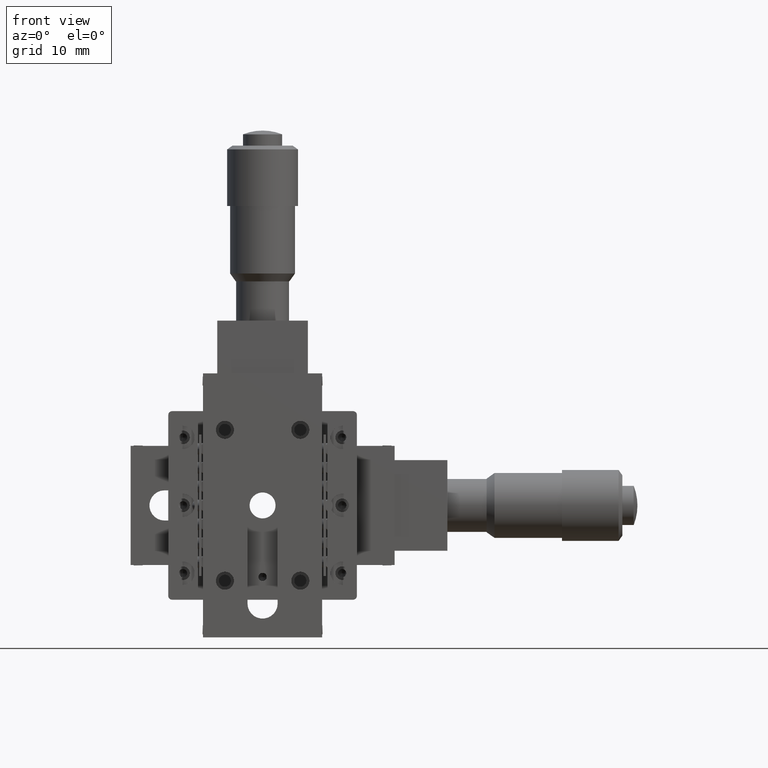
[diagram: clean part render]
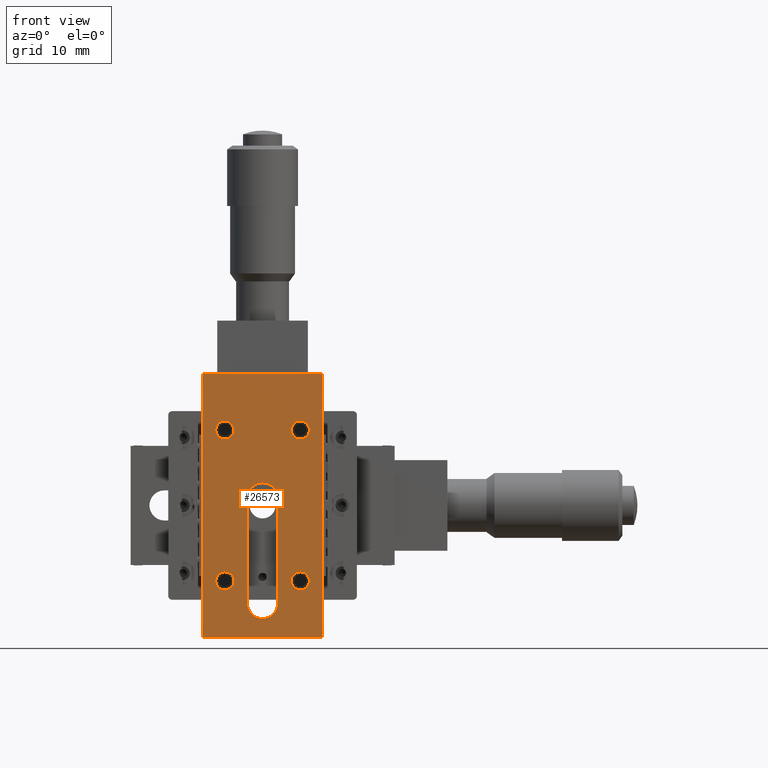
[diagram: same view with one face highlighted and labeled with its STEP entity id]
A machine part, front view. The second image highlights one B-rep face of the part: STEP entity #26573.
In plain terms, the highlighted planar face has unit normal (-0, 1, 0).
Its self-contained STEP definition (entity closure, byte-faithful):
#158 = DIRECTION ( 'NONE',  ( 0.0000000000000000000, 1.110223024625156500E-015, -1.000000000000000000 ) ) ;
#200 = DIRECTION ( 'NONE',  ( 0.0000000000000000000, 1.110223024625156500E-015, -1.000000000000000000 ) ) ;
#422 = VECTOR ( 'NONE', #9794, 1000.000000000000000 ) ;
#506 = CIRCLE ( 'NONE', #50569, 1.199999999999999700 ) ;
#1143 = VECTOR ( 'NONE', #20585, 1000.000000000000000 ) ;
#2411 = EDGE_CURVE ( 'NONE', #31927, #52229, #16570, .T. ) ;
#3026 = CIRCLE ( 'NONE', #14274, 1.199999999999999700 ) ;
#3880 = EDGE_CURVE ( 'NONE', #15996, #24010, #49608, .T. ) ;
#3950 = ORIENTED_EDGE ( 'NONE', *, *, #65214, .F. ) ;
#4063 = ORIENTED_EDGE ( 'NONE', *, *, #49548, .F. ) ;
#4249 = AXIS2_PLACEMENT_3D ( 'NONE', #55560, #61020, #66495 ) ;
#4404 = EDGE_LOOP ( 'NONE', ( #20397, #26234 ) ) ;
#5072 = VECTOR ( 'NONE', #12474, 1000.000000000000000 ) ;
#5094 = CARTESIAN_POINT ( 'NONE',  ( -2.888894916580853800E-030, 1.185163078787354600E-014, -13.00000000000000200 ) ) ;
#5364 = CARTESIAN_POINT ( 'NONE',  ( -5.000000000000000900, 1.151856388048599900E-014, -10.00000000000000200 ) ) ;
#6958 = VECTOR ( 'NONE', #20531, 1000.000000000000000 ) ;
#7194 = VERTEX_POINT ( 'NONE', #29598 ) ;
#7515 = CARTESIAN_POINT ( 'NONE',  ( -2.000000000000001300, -1.110223024625154200E-016, 0.9999999999999974500 ) ) ;
#7636 = CARTESIAN_POINT ( 'NONE',  ( -7.900000000000002100, 1.235123114895487100E-014, -17.50000000000002500 ) ) ;
#7740 = CIRCLE ( 'NONE', #27718, 1.199999999999999700 ) ;
#8347 = EDGE_LOOP ( 'NONE', ( #50861, #34648, #64159, #52198, #25295 ) ) ;
#8455 = LINE ( 'NONE', #49525, #5072 ) ;
#9764 = LINE ( 'NONE', #31417, #422 ) ;
#9794 = DIRECTION ( 'NONE',  ( 1.000000000000000000, 0.0000000000000000000, -0.0000000000000000000 ) ) ;
#9799 = EDGE_LOOP ( 'NONE', ( #64377, #20846 ) ) ;
#10499 = VERTEX_POINT ( 'NONE', #17187 ) ;
#10919 = CARTESIAN_POINT ( 'NONE',  ( -5.000000000000000900, 1.151856388048599900E-014, -10.00000000000000200 ) ) ;
#11015 = CARTESIAN_POINT ( 'NONE',  ( -2.000000000000000000, 1.185163078787354600E-014, -13.00000000000000200 ) ) ;
#11176 = AXIS2_PLACEMENT_3D ( 'NONE', #12284, #34339, #50261 ) ;
#12284 = CARTESIAN_POINT ( 'NONE',  ( -7.900000000000002100, -1.235678226407799000E-014, 17.54999999999997900 ) ) ;
#12312 = FACE_BOUND ( 'NONE', #41667, .T. ) ;
#12474 = DIRECTION ( 'NONE',  ( 0.0000000000000000000, 1.110223024625156700E-015, -1.000000000000000000 ) ) ;
#12690 = DIRECTION ( 'NONE',  ( 5.605193857299268300E-045, -1.000000000000000000, 1.387778780781445900E-015 ) ) ;
#12939 = ORIENTED_EDGE ( 'NONE', *, *, #61300, .F. ) ;
#13430 = CIRCLE ( 'NONE', #41445, 1.199999999999999700 ) ;
#13987 = FACE_BOUND ( 'NONE', #9799, .T. ) ;
#14274 = AXIS2_PLACEMENT_3D ( 'NONE', #17356, #21872, #60833 ) ;
#14436 = VERTEX_POINT ( 'NONE', #49265 ) ;
#14531 = DIRECTION ( 'NONE',  ( 5.605193857299268300E-045, -1.000000000000000000, 1.387778780781445900E-015 ) ) ;
#15512 = EDGE_LOOP ( 'NONE', ( #68086, #57704, #17176, #4063 ) ) ;
#15996 = VERTEX_POINT ( 'NONE', #18301 ) ;
#16152 = EDGE_CURVE ( 'NONE', #7194, #29678, #33557, .T. ) ;
#16445 = LINE ( 'NONE', #29146, #17342 ) ;
#16570 = CIRCLE ( 'NONE', #47558, 2.000000000000000000 ) ;
#17176 = ORIENTED_EDGE ( 'NONE', *, *, #40668, .F. ) ;
#17187 = CARTESIAN_POINT ( 'NONE',  ( 4.999999999999999100, 1.285083151003618500E-014, -11.20000000000000100 ) ) ;
#17342 = VECTOR ( 'NONE', #50522, 1000.000000000000000 ) ;
#17356 = CARTESIAN_POINT ( 'NONE',  ( 4.999999999999999100, 1.151856388048599900E-014, -10.00000000000000200 ) ) ;
#17403 = EDGE_CURVE ( 'NONE', #34210, #31927, #16445, .T. ) ;
#18182 = CARTESIAN_POINT ( 'NONE',  ( 2.000000000000000000, 1.185163078787354600E-014, -13.00000000000000200 ) ) ;
#18301 = CARTESIAN_POINT ( 'NONE',  ( -7.900000000000002100, -1.235123114895486300E-014, 17.49999999999997900 ) ) ;
#18979 = AXIS2_PLACEMENT_3D ( 'NONE', #10919, #43213, #31832 ) ;
#19192 = ORIENTED_EDGE ( 'NONE', *, *, #34022, .F. ) ;
#19970 = CARTESIAN_POINT ( 'NONE',  ( 4.999999999999999100, 1.318389841742373400E-014, -8.800000000000002500 ) ) ;
#20290 = DIRECTION ( 'NONE',  ( 0.0000000000000000000, 1.110223024625156700E-015, -1.000000000000000000 ) ) ;
#20397 = ORIENTED_EDGE ( 'NONE', *, *, #31062, .F. ) ;
#20531 = DIRECTION ( 'NONE',  ( -1.548860246407863600E-016, -1.110223024625156700E-015, 1.000000000000000000 ) ) ;
#20585 = DIRECTION ( 'NONE',  ( 0.0000000000000000000, 1.110223024625156700E-015, -1.000000000000000000 ) ) ;
#20846 = ORIENTED_EDGE ( 'NONE', *, *, #38129, .F. ) ;
#21756 = DIRECTION ( 'NONE',  ( 5.605193857299268300E-045, -1.000000000000000000, 1.387778780781445900E-015 ) ) ;
#21872 = DIRECTION ( 'NONE',  ( 5.605193857299268300E-045, -1.000000000000000000, 1.387778780781445900E-015 ) ) ;
#22179 = AXIS2_PLACEMENT_3D ( 'NONE', #58753, #26211, #31905 ) ;
#22435 = FACE_BOUND ( 'NONE', #28190, .T. ) ;
#22951 = PLANE ( 'NONE',  #11176 ) ;
#24010 = VERTEX_POINT ( 'NONE', #7636 ) ;
#25083 = EDGE_CURVE ( 'NONE', #52229, #34728, #58847, .T. ) ;
#25295 = ORIENTED_EDGE ( 'NONE', *, *, #2411, .F. ) ;
#25939 = CIRCLE ( 'NONE', #61452, 1.999999999999999600 ) ;
#26025 = EDGE_CURVE ( 'NONE', #14436, #34210, #25939, .T. ) ;
#26211 = DIRECTION ( 'NONE',  ( 5.605193857299268300E-045, -1.000000000000000000, 1.387778780781445900E-015 ) ) ;
#26234 = ORIENTED_EDGE ( 'NONE', *, *, #57772, .F. ) ;
#26573 = ADVANCED_FACE ( 'NONE', ( #13987, #12312, #54786, #37810, #22435, #61580 ), #22951, .F. ) ;
#27718 = AXIS2_PLACEMENT_3D ( 'NONE', #55543, #34121, #65780 ) ;
#28177 = VERTEX_POINT ( 'NONE', #38602 ) ;
#28190 = EDGE_LOOP ( 'NONE', ( #3950, #12939 ) ) ;
#28650 = EDGE_CURVE ( 'NONE', #34728, #14436, #43572, .T. ) ;
#28957 = AXIS2_PLACEMENT_3D ( 'NONE', #39985, #12690, #50697 ) ;
#29001 = CARTESIAN_POINT ( 'NONE',  ( -5.000000000000000900, 1.318389841742373400E-014, -8.800000000000002500 ) ) ;
#29146 = CARTESIAN_POINT ( 'NONE',  ( -2.000000000000000000, 1.185163078787354600E-014, -13.00000000000000200 ) ) ;
#29598 = CARTESIAN_POINT ( 'NONE',  ( -5.000000000000000900, 1.285083151003618500E-014, -11.20000000000000100 ) ) ;
#29678 = VERTEX_POINT ( 'NONE', #29001 ) ;
#30479 = DIRECTION ( 'NONE',  ( 0.0000000000000000000, 1.110223024625156500E-015, -1.000000000000000000 ) ) ;
#31062 = EDGE_CURVE ( 'NONE', #42781, #46257, #7740, .T. ) ;
#31417 = CARTESIAN_POINT ( 'NONE',  ( -7.900000000000002100, -1.235123114895486300E-014, 17.49999999999997900 ) ) ;
#31832 = DIRECTION ( 'NONE',  ( 0.0000000000000000000, 1.110223024625156500E-015, -1.000000000000000000 ) ) ;
#31905 = DIRECTION ( 'NONE',  ( 0.0000000000000000000, 1.110223024625156700E-015, -1.000000000000000000 ) ) ;
#31927 = VERTEX_POINT ( 'NONE', #11015 ) ;
#33557 = CIRCLE ( 'NONE', #18979, 1.199999999999999700 ) ;
#34022 = EDGE_CURVE ( 'NONE', #46192, #63651, #506, .T. ) ;
#34121 = DIRECTION ( 'NONE',  ( 5.605193857299268300E-045, -1.000000000000000000, 1.387778780781445900E-015 ) ) ;
#34210 = VERTEX_POINT ( 'NONE', #7515 ) ;
#34339 = DIRECTION ( 'NONE',  ( -5.605193857299268300E-045, 1.000000000000000000, 1.110223024625156700E-015 ) ) ;
#34554 = CARTESIAN_POINT ( 'NONE',  ( 7.900000000000000400, -1.235123114895486300E-014, 17.49999999999997900 ) ) ;
#34648 = ORIENTED_EDGE ( 'NONE', *, *, #26025, .F. ) ;
#34728 = VERTEX_POINT ( 'NONE', #35694 ) ;
#35513 = CARTESIAN_POINT ( 'NONE',  ( -4.999999999999998200, -1.018629625093581100E-014, 8.800000000000002500 ) ) ;
#35694 = CARTESIAN_POINT ( 'NONE',  ( 1.999999999999997800, -1.110223024625153700E-016, 0.9999999999999970000 ) ) ;
#37810 = FACE_BOUND ( 'NONE', #4404, .T. ) ;
#38129 = EDGE_CURVE ( 'NONE', #29678, #7194, #51433, .T. ) ;
#38602 = CARTESIAN_POINT ( 'NONE',  ( 7.900000000000000400, 1.235123114895487100E-014, -17.50000000000002500 ) ) ;
#38783 = CARTESIAN_POINT ( 'NONE',  ( 5.000000000000001800, -9.853229343548264300E-015, 11.20000000000000100 ) ) ;
#39985 = CARTESIAN_POINT ( 'NONE',  ( 5.000000000000001800, -1.151856388048599900E-014, 10.00000000000000200 ) ) ;
#40028 = EDGE_CURVE ( 'NONE', #63651, #46192, #47826, .T. ) ;
#40668 = EDGE_CURVE ( 'NONE', #28177, #24010, #56287, .T. ) ;
#41042 = CARTESIAN_POINT ( 'NONE',  ( 5.000000000000001800, -1.018629625093581100E-014, 8.800000000000002500 ) ) ;
#41445 = AXIS2_PLACEMENT_3D ( 'NONE', #53009, #14531, #30479 ) ;
#41667 = EDGE_LOOP ( 'NONE', ( #70528, #19192 ) ) ;
#42781 = VERTEX_POINT ( 'NONE', #35513 ) ;
#43213 = DIRECTION ( 'NONE',  ( 5.605193857299268300E-045, -1.000000000000000000, 1.387778780781445900E-015 ) ) ;
#43572 = CIRCLE ( 'NONE', #22179, 1.999999999999999600 ) ;
#43697 = EDGE_CURVE ( 'NONE', #15996, #68536, #9764, .T. ) ;
#46192 = VERTEX_POINT ( 'NONE', #38783 ) ;
#46257 = VERTEX_POINT ( 'NONE', #66127 ) ;
#47558 = AXIS2_PLACEMENT_3D ( 'NONE', #5094, #69528, #20290 ) ;
#47826 = CIRCLE ( 'NONE', #28957, 1.199999999999999700 ) ;
#49265 = CARTESIAN_POINT ( 'NONE',  ( -1.775737858763661600E-015, 2.664535259100375700E-015, 2.999999999999996900 ) ) ;
#49525 = CARTESIAN_POINT ( 'NONE',  ( 7.900000000000000400, -1.235678226407799000E-014, 17.54999999999997900 ) ) ;
#49548 = EDGE_CURVE ( 'NONE', #68536, #28177, #8455, .T. ) ;
#49608 = LINE ( 'NONE', #58618, #1143 ) ;
#50261 = DIRECTION ( 'NONE',  ( 0.0000000000000000000, 1.110223024625156700E-015, -1.000000000000000000 ) ) ;
#50522 = DIRECTION ( 'NONE',  ( 9.293161478447181700E-017, 1.110223024625156700E-015, -1.000000000000000000 ) ) ;
#50569 = AXIS2_PLACEMENT_3D ( 'NONE', #53416, #64846, #200 ) ;
#50697 = DIRECTION ( 'NONE',  ( 0.0000000000000000000, 1.110223024625156500E-015, -1.000000000000000000 ) ) ;
#50861 = ORIENTED_EDGE ( 'NONE', *, *, #17403, .F. ) ;
#51007 = DIRECTION ( 'NONE',  ( -1.000000000000000000, 0.0000000000000000000, 0.0000000000000000000 ) ) ;
#51433 = CIRCLE ( 'NONE', #52032, 1.199999999999999700 ) ;
#52032 = AXIS2_PLACEMENT_3D ( 'NONE', #5364, #21756, #158 ) ;
#52198 = ORIENTED_EDGE ( 'NONE', *, *, #25083, .F. ) ;
#52229 = VERTEX_POINT ( 'NONE', #18182 ) ;
#52750 = DIRECTION ( 'NONE',  ( 0.0000000000000000000, 1.110223024625156700E-015, -1.000000000000000000 ) ) ;
#53009 = CARTESIAN_POINT ( 'NONE',  ( -4.999999999999998200, -1.151856388048599900E-014, 10.00000000000000200 ) ) ;
#53416 = CARTESIAN_POINT ( 'NONE',  ( 5.000000000000001800, -1.151856388048599900E-014, 10.00000000000000200 ) ) ;
#54786 = FACE_BOUND ( 'NONE', #8347, .T. ) ;
#55543 = CARTESIAN_POINT ( 'NONE',  ( -4.999999999999998200, -1.151856388048599900E-014, 10.00000000000000200 ) ) ;
#55560 = CARTESIAN_POINT ( 'NONE',  ( 4.999999999999999100, 1.151856388048599900E-014, -10.00000000000000200 ) ) ;
#56287 = LINE ( 'NONE', #66978, #67364 ) ;
#57704 = ORIENTED_EDGE ( 'NONE', *, *, #3880, .T. ) ;
#57772 = EDGE_CURVE ( 'NONE', #46257, #42781, #13430, .T. ) ;
#57985 = CARTESIAN_POINT ( 'NONE',  ( -1.775737858763662000E-015, -1.110223024625154200E-016, 0.9999999999999974500 ) ) ;
#58618 = CARTESIAN_POINT ( 'NONE',  ( -7.900000000000002100, -1.235678226407799000E-014, 17.54999999999997900 ) ) ;
#58753 = CARTESIAN_POINT ( 'NONE',  ( -1.775737858763662000E-015, -1.110223024625154200E-016, 0.9999999999999974500 ) ) ;
#58847 = LINE ( 'NONE', #70000, #6958 ) ;
#59169 = VERTEX_POINT ( 'NONE', #19970 ) ;
#60170 = CIRCLE ( 'NONE', #4249, 1.199999999999999700 ) ;
#60833 = DIRECTION ( 'NONE',  ( 0.0000000000000000000, 1.110223024625156500E-015, -1.000000000000000000 ) ) ;
#61020 = DIRECTION ( 'NONE',  ( 5.605193857299268300E-045, -1.000000000000000000, 1.387778780781445900E-015 ) ) ;
#61300 = EDGE_CURVE ( 'NONE', #59169, #10499, #3026, .T. ) ;
#61452 = AXIS2_PLACEMENT_3D ( 'NONE', #57985, #64452, #52750 ) ;
#61580 = FACE_OUTER_BOUND ( 'NONE', #15512, .T. ) ;
#63651 = VERTEX_POINT ( 'NONE', #41042 ) ;
#64159 = ORIENTED_EDGE ( 'NONE', *, *, #28650, .F. ) ;
#64377 = ORIENTED_EDGE ( 'NONE', *, *, #16152, .F. ) ;
#64452 = DIRECTION ( 'NONE',  ( 5.605193857299268300E-045, -1.000000000000000000, 1.387778780781445900E-015 ) ) ;
#64846 = DIRECTION ( 'NONE',  ( 5.605193857299268300E-045, -1.000000000000000000, 1.387778780781445900E-015 ) ) ;
#65214 = EDGE_CURVE ( 'NONE', #10499, #59169, #60170, .T. ) ;
#65780 = DIRECTION ( 'NONE',  ( 0.0000000000000000000, 1.110223024625156500E-015, -1.000000000000000000 ) ) ;
#66127 = CARTESIAN_POINT ( 'NONE',  ( -4.999999999999998200, -9.853229343548264300E-015, 11.20000000000000100 ) ) ;
#66495 = DIRECTION ( 'NONE',  ( 0.0000000000000000000, 1.110223024625156500E-015, -1.000000000000000000 ) ) ;
#66978 = CARTESIAN_POINT ( 'NONE',  ( 7.900000000000000400, 1.235123114895487100E-014, -17.50000000000002500 ) ) ;
#67364 = VECTOR ( 'NONE', #51007, 1000.000000000000000 ) ;
#68086 = ORIENTED_EDGE ( 'NONE', *, *, #43697, .F. ) ;
#68536 = VERTEX_POINT ( 'NONE', #34554 ) ;
#69528 = DIRECTION ( 'NONE',  ( 5.605193857299268300E-045, -1.000000000000000000, 1.387778780781445900E-015 ) ) ;
#70000 = CARTESIAN_POINT ( 'NONE',  ( 2.000000000000000000, 1.185163078787354600E-014, -13.00000000000000200 ) ) ;
#70528 = ORIENTED_EDGE ( 'NONE', *, *, #40028, .F. ) ;